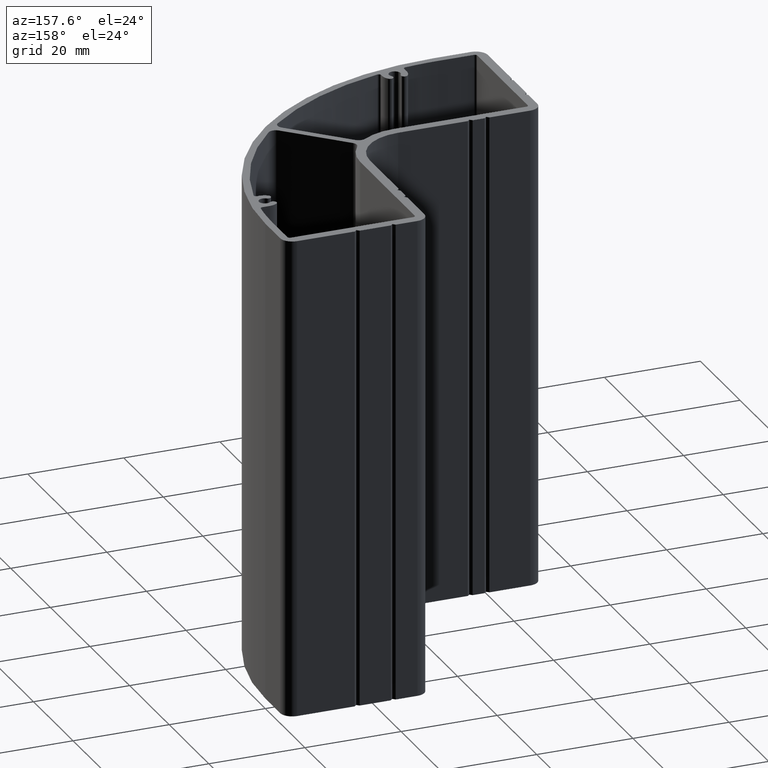
[diagram: clean part render]
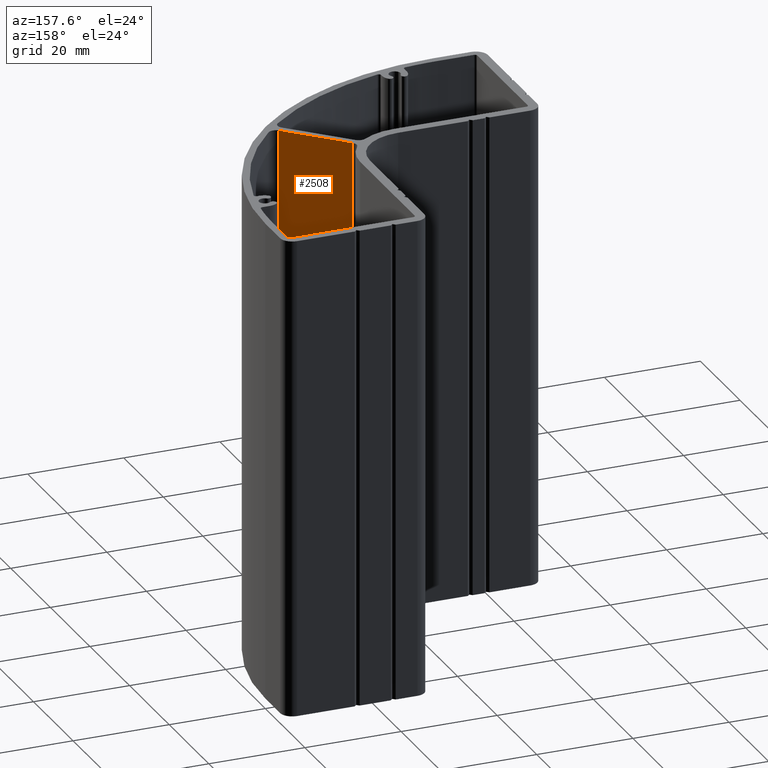
[diagram: same view with one face highlighted and labeled with its STEP entity id]
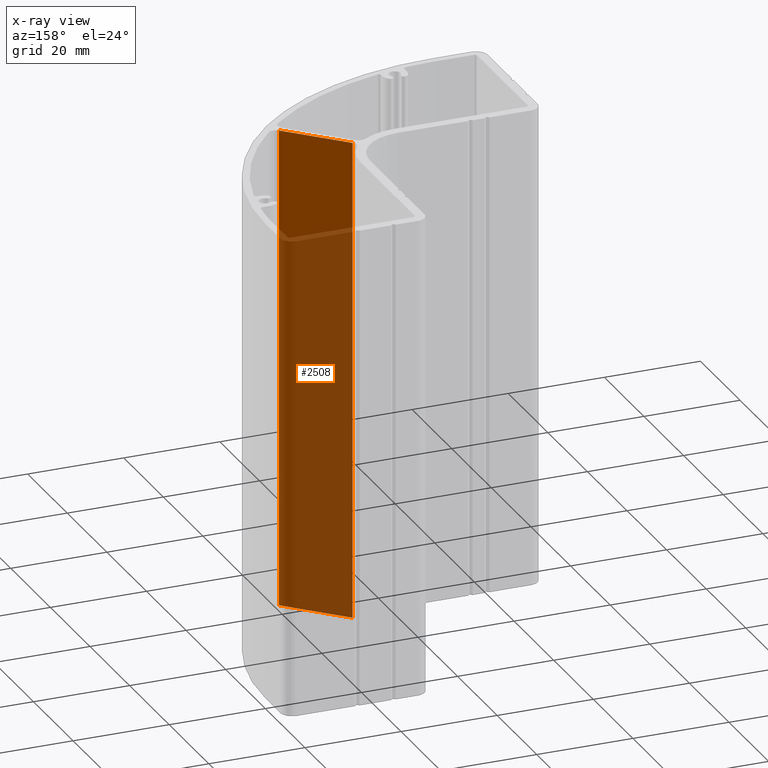
[diagram: x-ray of the same camera — body ghosted, the highlighted face saturated]
A machine part, auxiliary view. The second image highlights one B-rep face of the part: STEP entity #2508.
The next image is the same camera in x-ray: the body ghosted, the highlighted face saturated — about 80% of this face is hidden behind the body in this view.
In plain terms, the highlighted planar face has unit normal (0.7071, 0.7071, 0).
Its self-contained STEP definition (entity closure, byte-faithful):
#1492=CARTESIAN_POINT('',(20.804003247956189,-19.743343076176643,100.0));
#1493=VERTEX_POINT('',#1492);
#1501=CARTESIAN_POINT('',(9.942755387669422,-8.882095206967961,100.0));
#1502=VERTEX_POINT('',#1501);
#1503=CARTESIAN_POINT('',(9.942755387669422,-8.882095206967961,100.0));
#1504=DIRECTION('',(0.707106780896138,-0.707106781476957,0.0));
#1505=VECTOR('',#1504,15.360124034621407);
#1506=LINE('',#1503,#1505);
#1507=EDGE_CURVE('',#1502,#1493,#1506,.T.);
#1852=CARTESIAN_POINT('',(9.942755387669422,-8.882095206967961,0.0));
#1853=VERTEX_POINT('',#1852);
#1861=CARTESIAN_POINT('',(20.804003247956189,-19.743343076176643,0.0));
#1862=VERTEX_POINT('',#1861);
#1863=CARTESIAN_POINT('',(9.942755387669422,-8.882095206967961,0.0));
#1864=DIRECTION('',(0.707106780896123,-0.707106781476972,0.0));
#1865=VECTOR('',#1864,15.360124034622052);
#1866=LINE('',#1863,#1865);
#1867=EDGE_CURVE('',#1853,#1862,#1866,.T.);
#2481=CARTESIAN_POINT('',(9.942755387669422,-8.882095206967961,100.0));
#2482=DIRECTION('',(0.0,0.0,-1.0));
#2483=VECTOR('',#2482,100.0);
#2484=LINE('',#2481,#2483);
#2485=EDGE_CURVE('',#1502,#1853,#2484,.T.);
#2492=CARTESIAN_POINT('',(9.942755387669422,-8.882095206967961,100.0));
#2493=DIRECTION('',(0.707106781476957,0.707106780896138,0.0));
#2494=DIRECTION('',(0.707106780896138,-0.707106781476957,0.0));
#2495=AXIS2_PLACEMENT_3D('',#2492,#2493,#2494);
#2496=PLANE('',#2495);
#2497=ORIENTED_EDGE('',*,*,#1507,.T.);
#2498=CARTESIAN_POINT('',(20.804003247956189,-19.743343076176643,100.0));
#2499=DIRECTION('',(0.0,0.0,-1.0));
#2500=VECTOR('',#2499,100.0);
#2501=LINE('',#2498,#2500);
#2502=EDGE_CURVE('',#1493,#1862,#2501,.T.);
#2503=ORIENTED_EDGE('',*,*,#2502,.T.);
#2504=ORIENTED_EDGE('',*,*,#1867,.F.);
#2505=ORIENTED_EDGE('',*,*,#2485,.F.);
#2506=EDGE_LOOP('',(#2497,#2503,#2504,#2505));
#2507=FACE_OUTER_BOUND('',#2506,.T.);
#2508=ADVANCED_FACE('',(#2507),#2496,.T.);